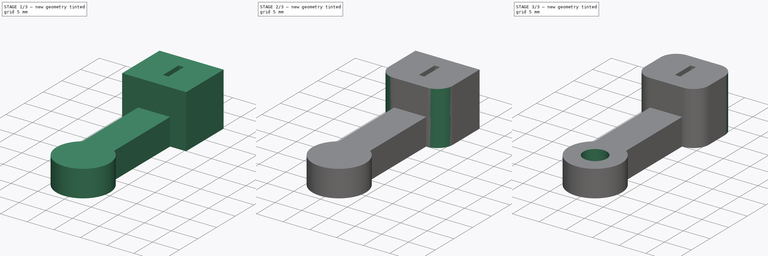
[diagram: build sequence overview — one tinted view per stage of 3, left to right]
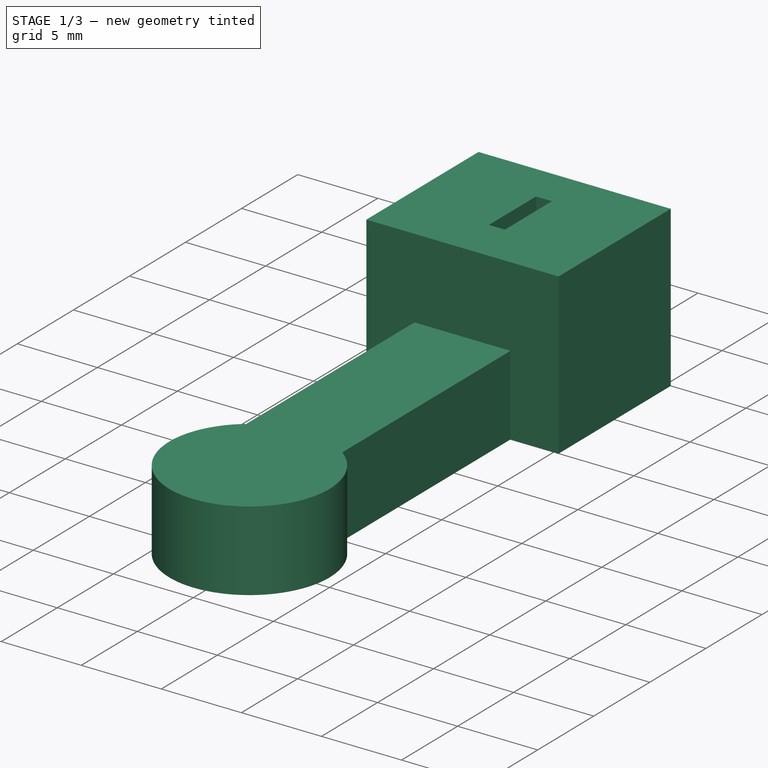
[diagram: stage 1 of 3 — iso view after this stage's code; geometry added in this stage tinted green]
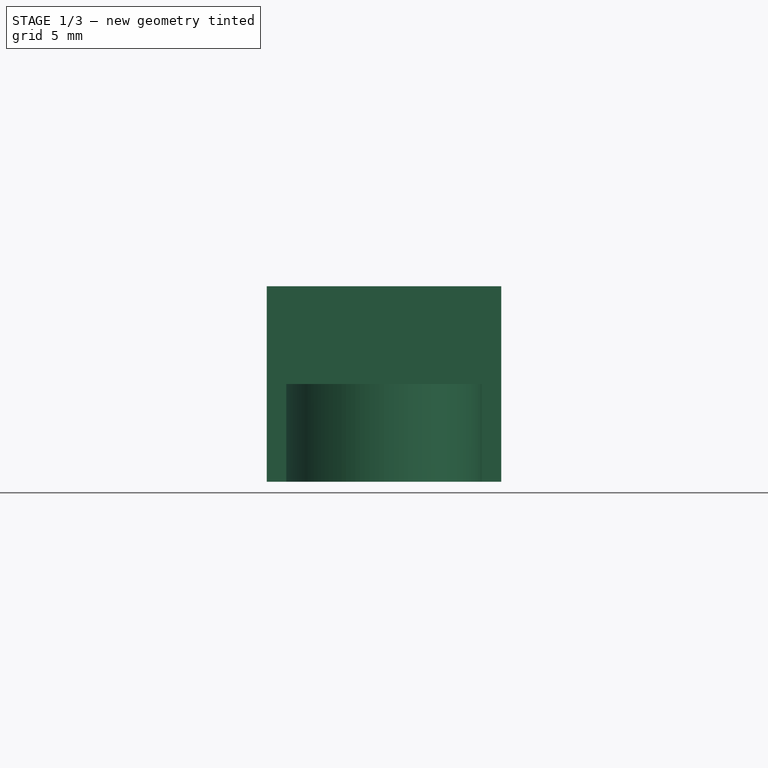
[diagram: stage 1 of 3 — front view after this stage's code; geometry added in this stage tinted green]
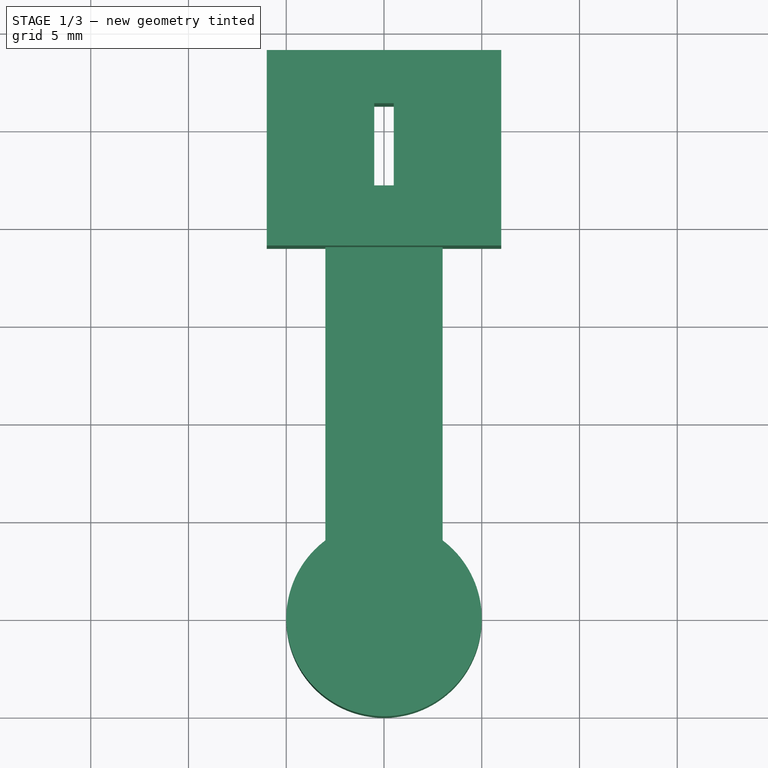
[diagram: stage 1 of 3 — top view after this stage's code; geometry added in this stage tinted green]
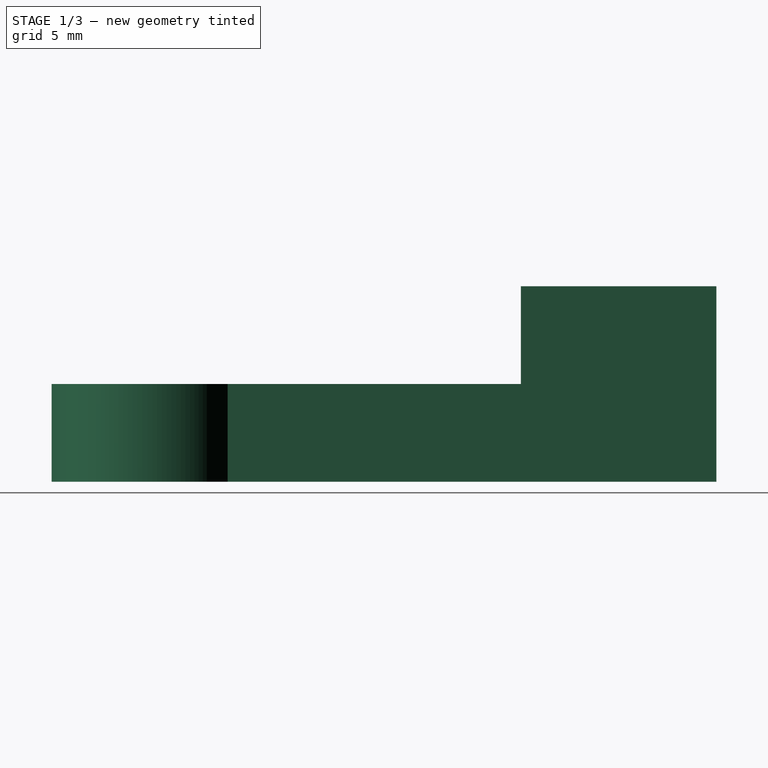
[diagram: stage 1 of 3 — right view after this stage's code; geometry added in this stage tinted green]
FCSTD DOCUMENT  (FreeCAD 0.18R4 (GitTag))
Label: T-C Link New
License: All rights reserved
LicenseURL: http://en.wikipedia.org/wiki/All_rights_reserved
objects: Sketcher::SketchObject×4, PartDesign::Fillet×4, PartDesign::Pad×2, PartDesign::Pocket×2, PartDesign::Body×1
note: 17 computed .brp shape members not serialized (recipe doc carries the construction recipe); baked Part::Feature solids carry a one-line shape summary decoded from their .brp

FEATURE [Sketcher::SketchObject] Sketch
  MapMode = 5
  Support = -> [XY_Plane]
  sketch-geometry (8):
    g0: ArcOfCircle CenterX=0 CenterY=0 CenterZ=0 NormalX=0 NormalY=0 NormalZ=1 AngleXU=0 Radius=5 StartAngle=2.2143 EndAngle=7.21048
    g1: LineSegment StartX=-3 StartY=4 StartZ=0 EndX=-3 EndY=19 EndZ=0
    g2: LineSegment StartX=3 StartY=4 StartZ=0 EndX=3 EndY=19 EndZ=0
    g3: LineSegment StartX=-3 StartY=19 StartZ=0 EndX=-6 EndY=19 EndZ=0
    g4: LineSegment StartX=-6 StartY=19 StartZ=0 EndX=-6 EndY=29 EndZ=0
    g5: LineSegment StartX=-6 StartY=29 StartZ=0 EndX=6 EndY=29 EndZ=0
    g6: LineSegment StartX=6 StartY=29 StartZ=0 EndX=6 EndY=19 EndZ=0
    g7: LineSegment StartX=6 StartY=19 StartZ=0 EndX=3 EndY=19 EndZ=0
  constraints (24):
    c: Coincident(g0,g-1)
    c: Coincident(g1,g0)
    c: Coincident(g0,g2)
    c: Parallel(g1,g2)
    c: Parallel(g-2,g1)
    c: Radius(g0) = 5
    c: DistanceY(g0,g0) = 4
    c: DistanceY(g0,g0) = 4
    c: Distance(g2) = 15
    c: Distance(g1) = 15
    c: Coincident(g2,g7)
    c: Coincident(g6,g7)
    c: Coincident(g5,g6)
    c: Coincident(g4,g5)
    c: Coincident(g4,g3)
    c: Coincident(g3,g1)
    c: Parallel(g3,g-1)
    c: Parallel(g7,g-1)
    c: Parallel(g6,g-2)
    c: Parallel(g4,g6)
    c: Parallel(g5,g-1)
    c: Distance(g7) = 3
    c: Distance(g3) = 3
    c: Distance(g6) = 10
FEATURE [PartDesign::Pad] Pad
  Length = 5
  Length2 = 100
  Profile = -> Sketch
  Type = 0
FEATURE [Sketcher::SketchObject] Sketch001
  MapMode = 5
  Placement = pos=(0,0,5) rot=(0,0,1;0rad)
  Support = -> [Pad]
  sketch-geometry (4):
    g0: LineSegment StartX=-6 StartY=29 StartZ=0 EndX=6 EndY=29 EndZ=0
    g1: LineSegment StartX=6 StartY=29 StartZ=0 EndX=6 EndY=19 EndZ=0
    g2: LineSegment StartX=6 StartY=19 StartZ=0 EndX=-6 EndY=19 EndZ=0
    g3: LineSegment StartX=-6 StartY=19 StartZ=0 EndX=-6 EndY=29 EndZ=0
  constraints (12):
    c: Coincident(g0,g1)
    c: Coincident(g1,g2)
    c: Coincident(g2,g3)
    c: Coincident(g3,g0)
    c: Horizontal(g0)
    c: Horizontal(g2)
    c: Vertical(g1)
    c: Vertical(g3)
    c: Distance(g2) = 12
    c: DistanceX(g-1,g1) = 6
    c: Distance(g1) = 10
    c: DistanceY(g-1,g1) = 19
FEATURE [PartDesign::Pad] Pad001
  BaseFeature = -> Pad
  Length = 5
  Length2 = 100
  Profile = -> Sketch001
  Type = 0
FEATURE [Sketcher::SketchObject] Sketch002
  MapMode = 5
  Placement = pos=(0,0,10) rot=(0,0,1;0rad)
  Support = -> [Pad001]
  sketch-geometry (4):
    g0: LineSegment StartX=-0.5 StartY=26.2739 StartZ=0 EndX=0.5 EndY=26.2739 EndZ=0
    g1: LineSegment StartX=0.5 StartY=26.2739 StartZ=0 EndX=0.5 EndY=22.0739 EndZ=0
    g2: LineSegment StartX=0.5 StartY=22.0739 StartZ=0 EndX=-0.5 EndY=22.0739 EndZ=0
    g3: LineSegment StartX=-0.5 StartY=22.0739 StartZ=0 EndX=-0.5 EndY=26.2739 EndZ=0
  constraints (11):
    c: Coincident(g0,g1)
    c: Coincident(g1,g2)
    c: Coincident(g2,g3)
    c: Coincident(g3,g0)
    c: Horizontal(g0)
    c: Horizontal(g2)
    c: Vertical(g1)
    c: Vertical(g3)
    c: Distance(g0) = 1
    c: Distance(g1) = 4.2
    c: DistanceX(g0,g-1) = 0.5
FEATURE [PartDesign::Pocket] Pocket
  BaseFeature = -> Pad001
  Length = 10
  Length2 = 100
  Profile = -> Sketch002
  Type = 0
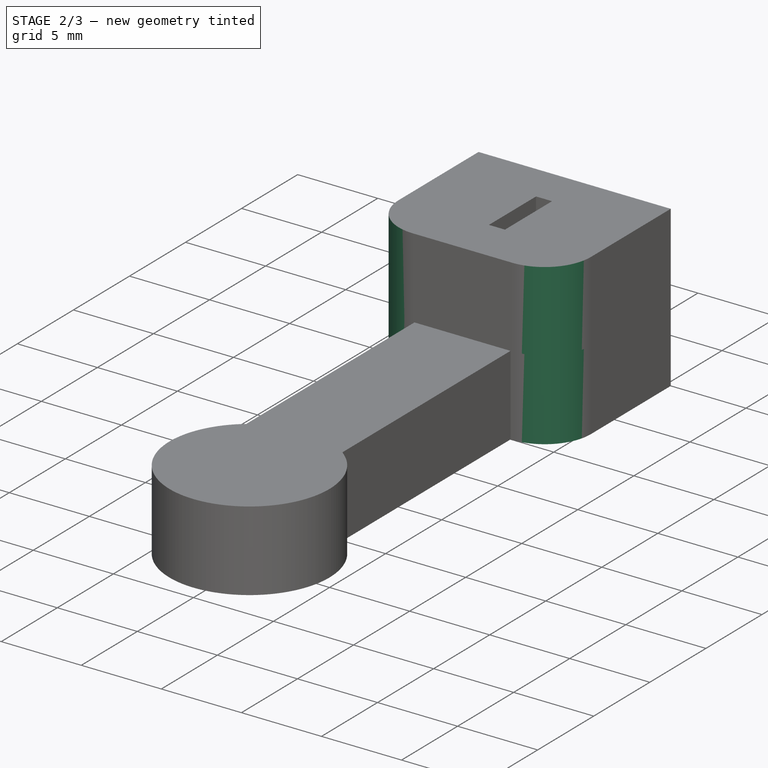
[diagram: stage 2 of 3 — iso view after this stage's code; geometry added in this stage tinted green]
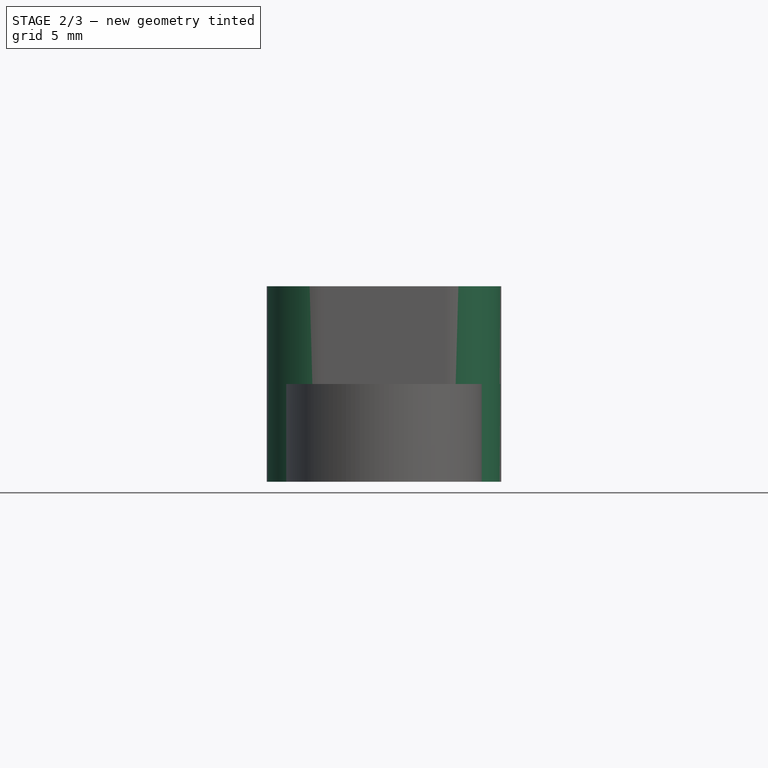
[diagram: stage 2 of 3 — front view after this stage's code; geometry added in this stage tinted green]
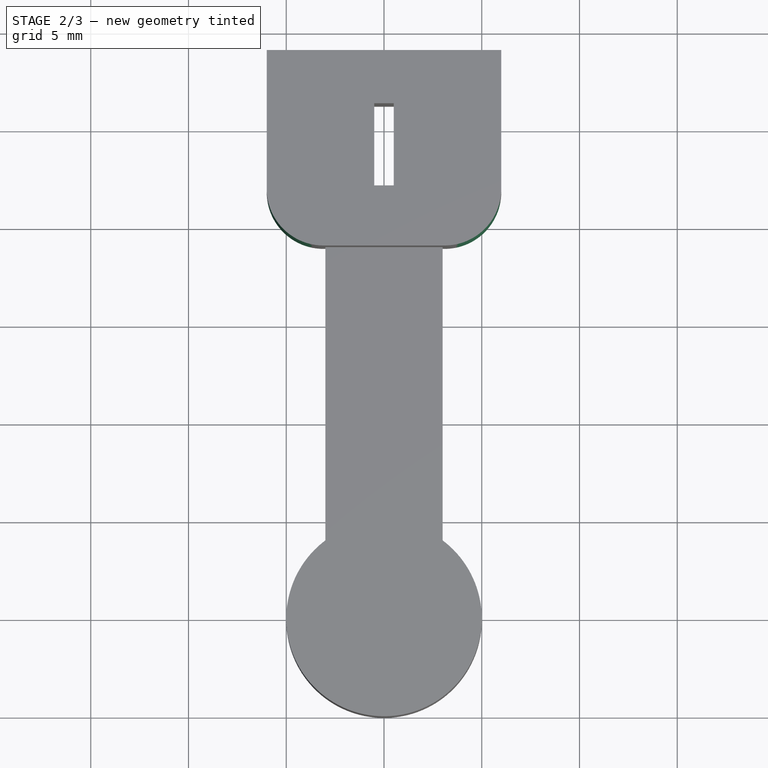
[diagram: stage 2 of 3 — top view after this stage's code; geometry added in this stage tinted green]
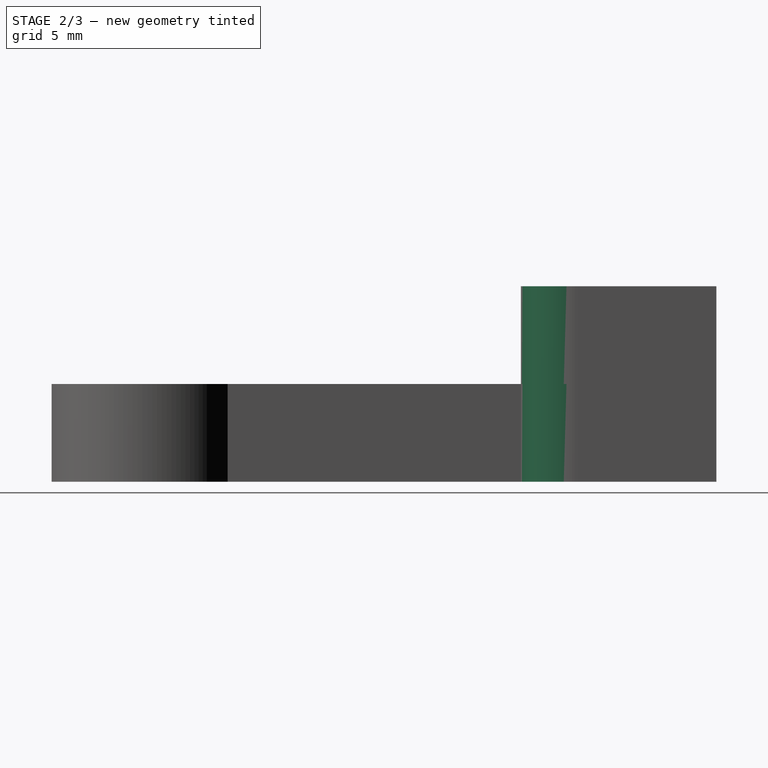
[diagram: stage 2 of 3 — right view after this stage's code; geometry added in this stage tinted green]
FEATURE [PartDesign::Fillet] Fillet
  Base = -> Pocket [Edge38]
  BaseFeature = -> Pocket
  Radius = 2.9
FEATURE [PartDesign::Fillet] Fillet001
  Base = -> Fillet [Edge43]
  BaseFeature = -> Fillet
  Radius = 2.9
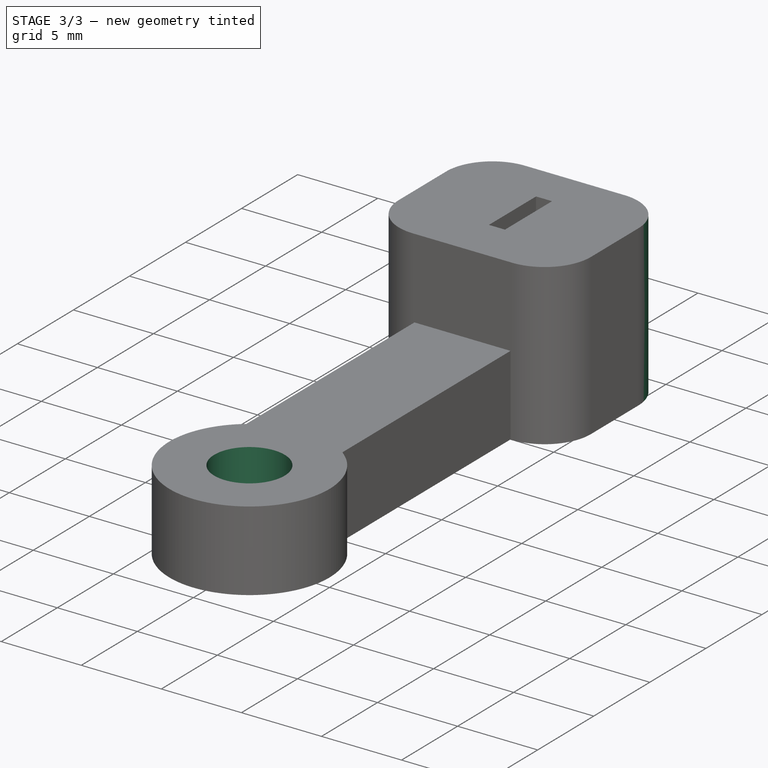
[diagram: stage 3 of 3 — iso view after this stage's code; geometry added in this stage tinted green]
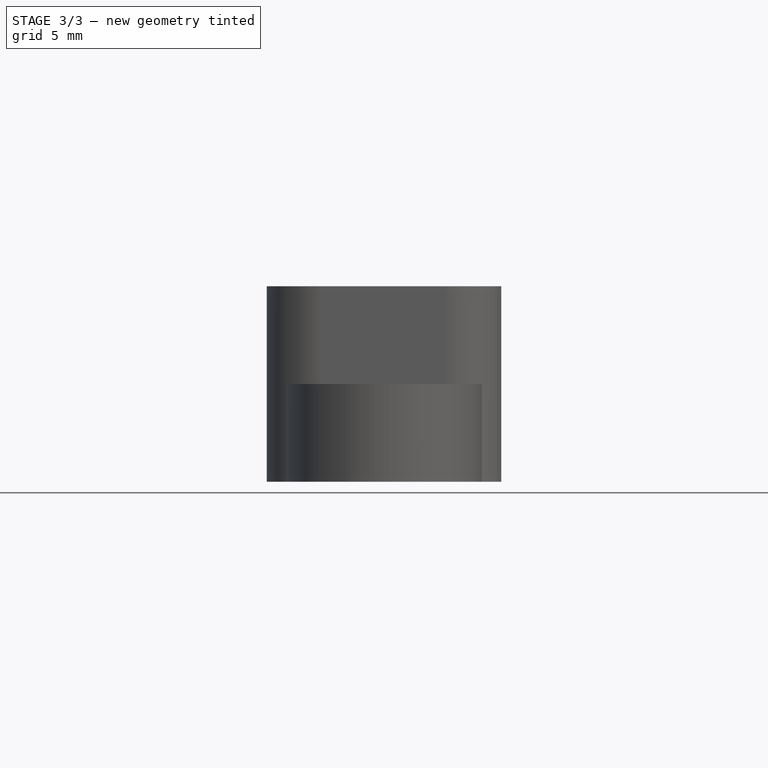
[diagram: stage 3 of 3 — front view after this stage's code; geometry added in this stage tinted green]
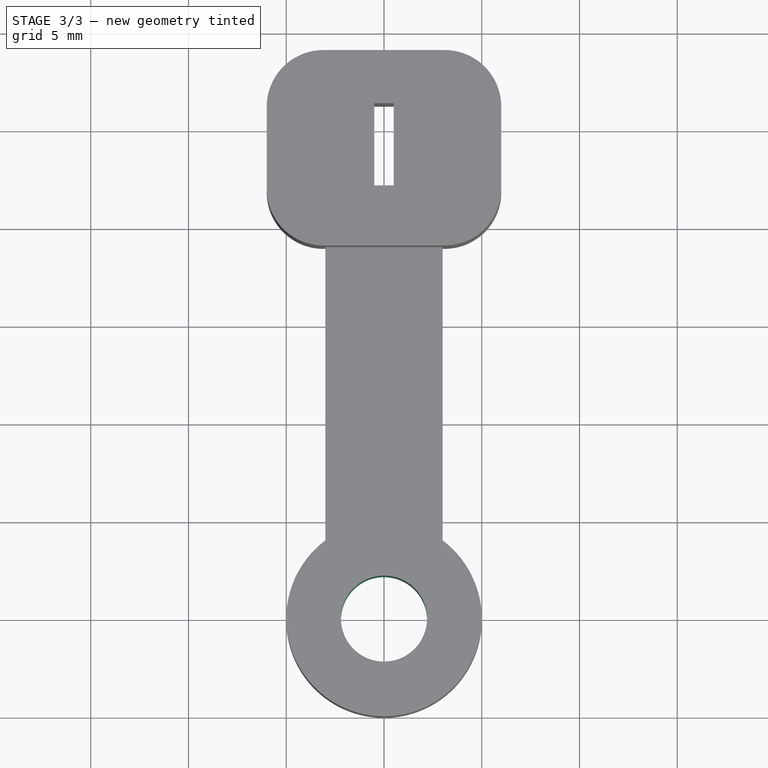
[diagram: stage 3 of 3 — top view after this stage's code; geometry added in this stage tinted green]
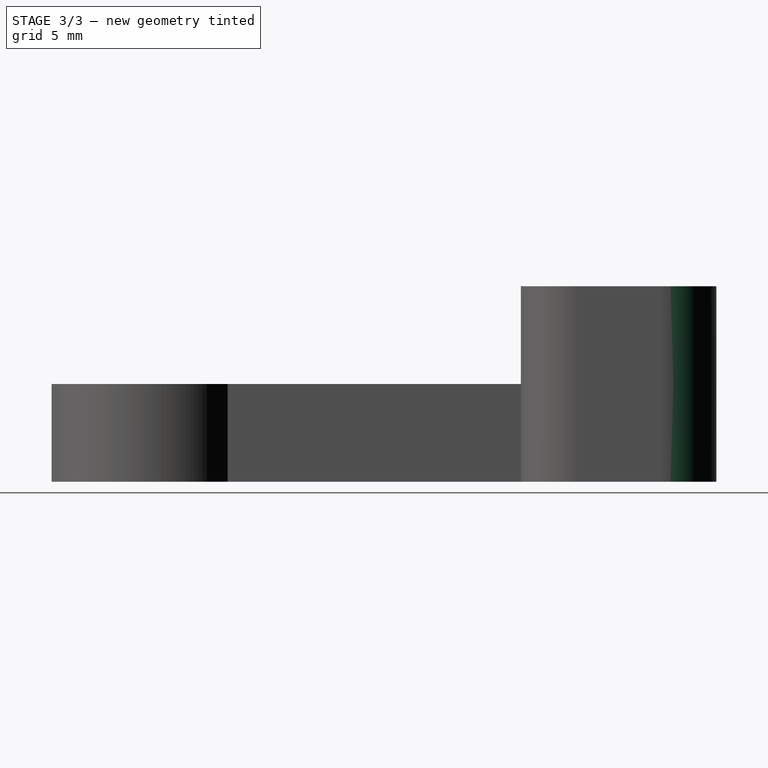
[diagram: stage 3 of 3 — right view after this stage's code; geometry added in this stage tinted green]
FEATURE [PartDesign::Fillet] Fillet002
  Base = -> Fillet001 [Edge48]
  BaseFeature = -> Fillet001
  Radius = 2.9
FEATURE [PartDesign::Fillet] Fillet003
  Base = -> Fillet002 [Edge47]
  BaseFeature = -> Fillet002
  Radius = 2.9
FEATURE [Sketcher::SketchObject] Sketch003
  MapMode = 5
  Placement = pos=(0,0,5) rot=(0,0,1;0rad)
  Support = -> [Fillet003]
  sketch-geometry (1):
    g0: Circle CenterX=0 CenterY=0 CenterZ=0 NormalX=0 NormalY=0 NormalZ=1 AngleXU=0 Radius=2.2
  constraints (2):
    c: Coincident(g0,g-1)
    c: Radius(g0) = 2.2
FEATURE [PartDesign::Pocket] Pocket001
  BaseFeature = -> Fillet003
  Length = 5
  Length2 = 100
  Profile = -> Sketch003
  Type = 0
FEATURE [PartDesign::Body] Body
  Group = -> [Sketch,Pad,Sketch001,Pad001,Sketch002,Pocket,Fillet,Fillet001,Fillet002,Fillet003,Sketch003,Pocket001]
  Origin = -> Origin
  Tip = -> Pocket001
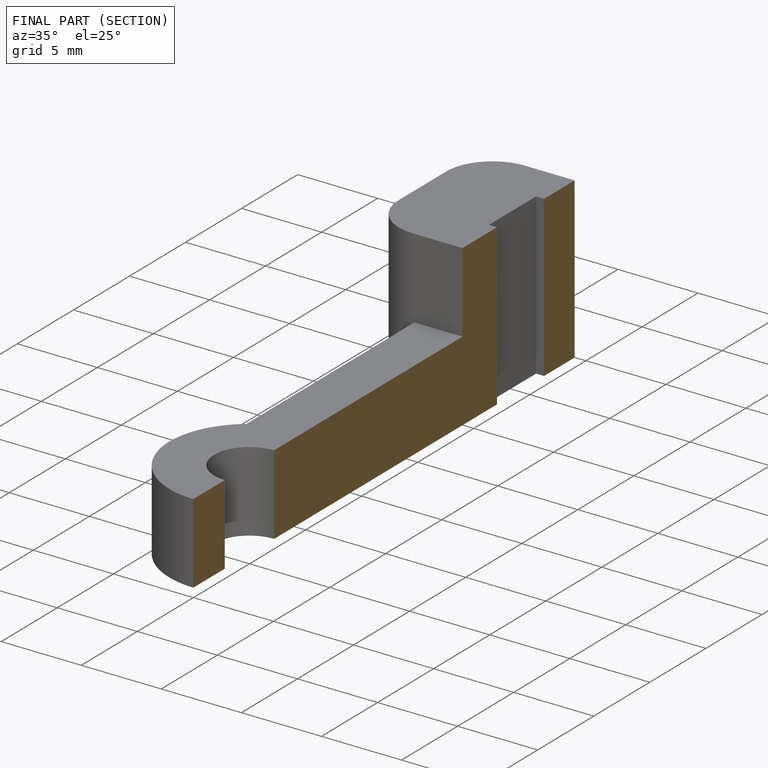
[diagram: finished part — half-section view (interior)]
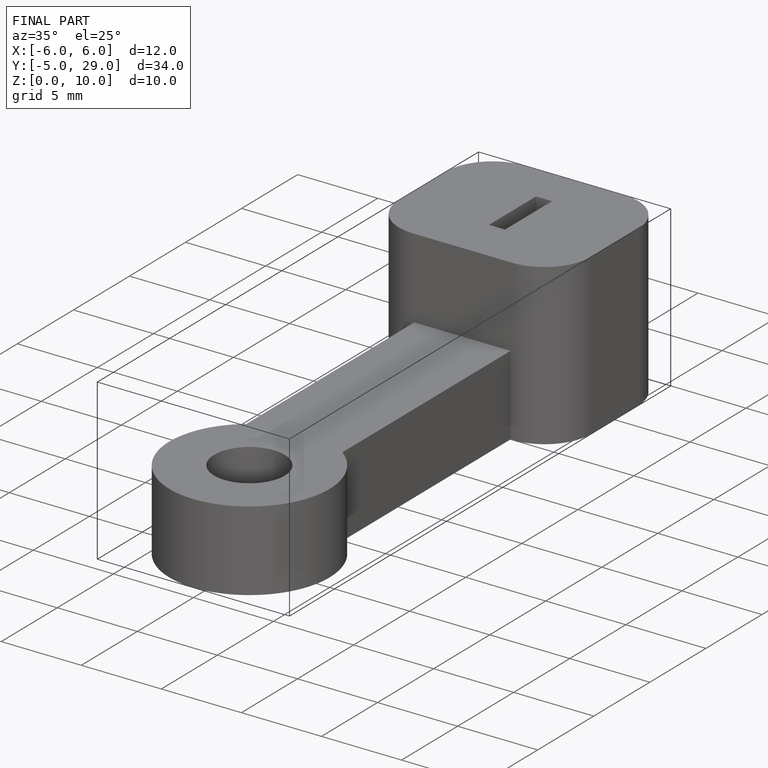
[diagram: finished part — iso view with bounding-box wireframe]
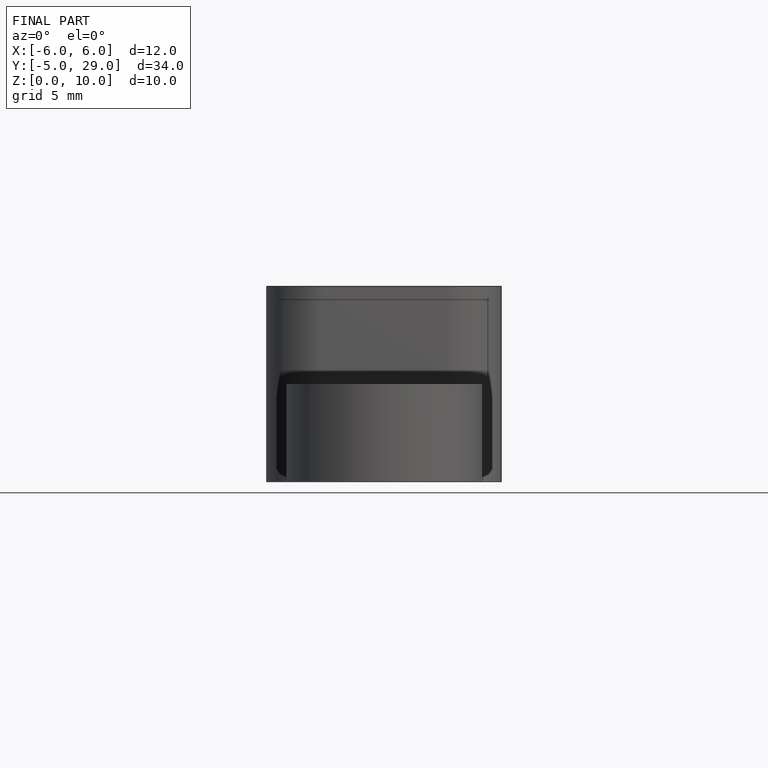
[diagram: finished part — front view with bounding-box wireframe]
